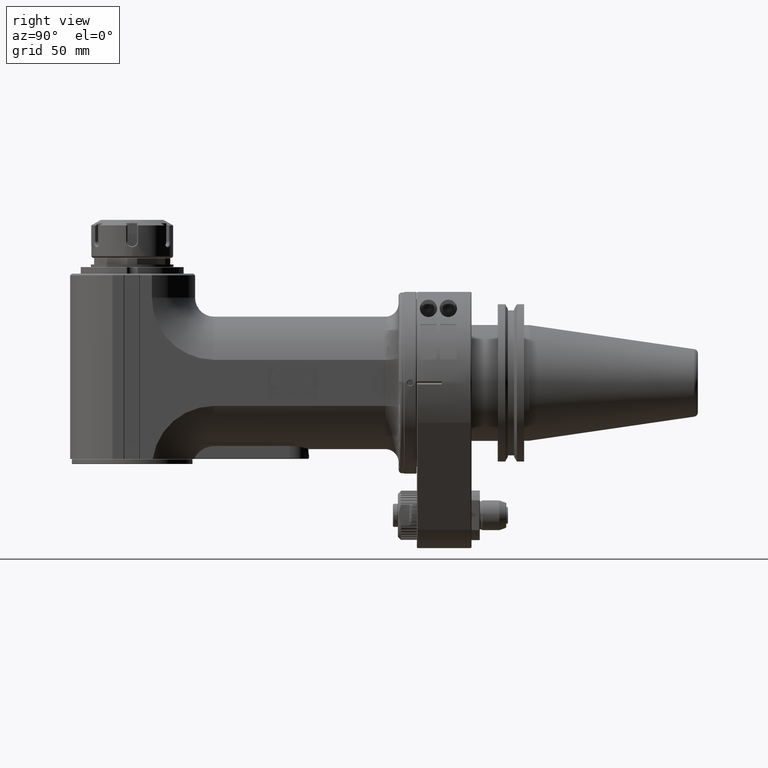
[diagram: clean part render]
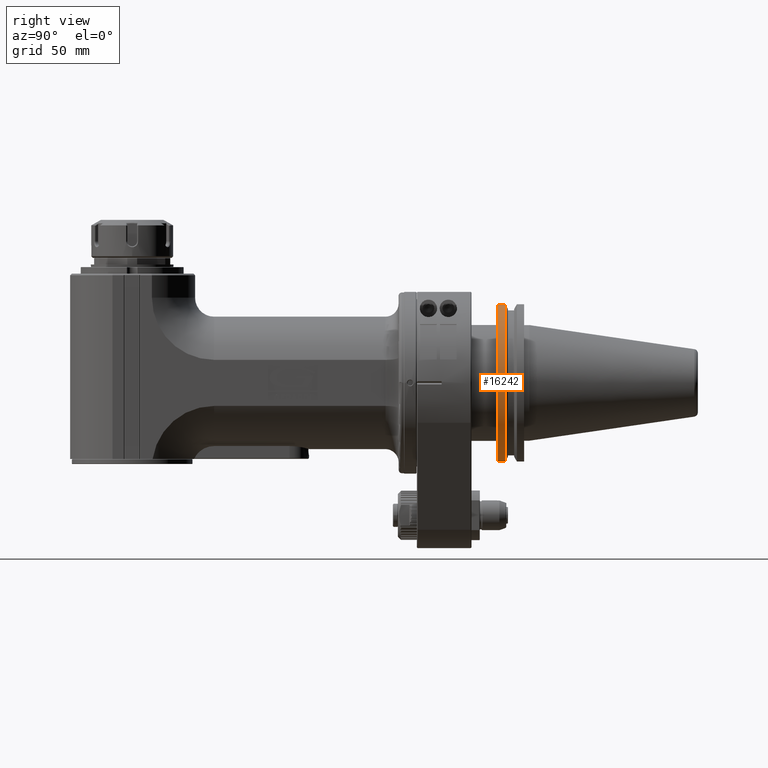
[diagram: same view with one face highlighted and labeled with its STEP entity id]
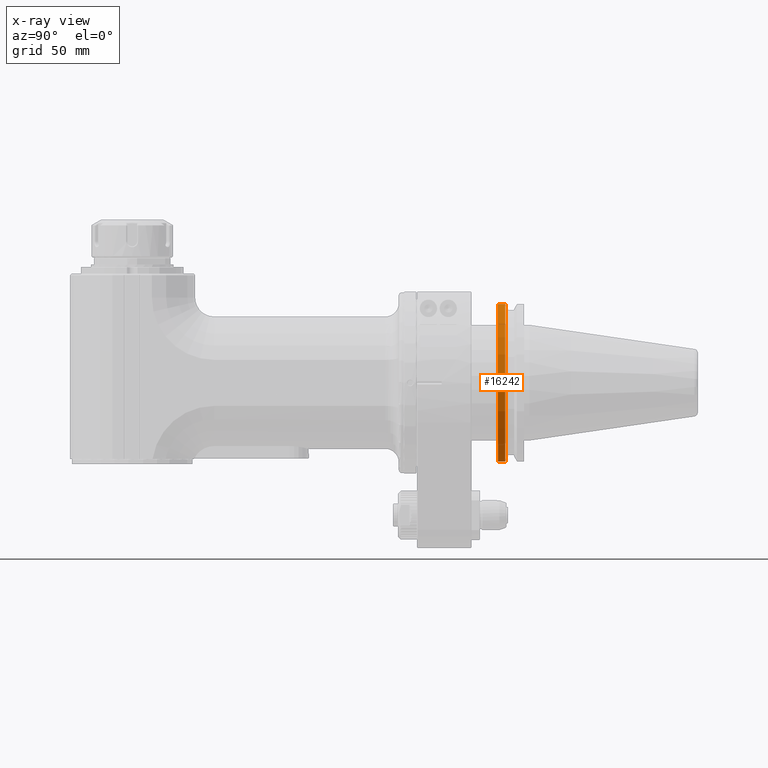
[diagram: x-ray of the same camera — body ghosted, the highlighted face saturated]
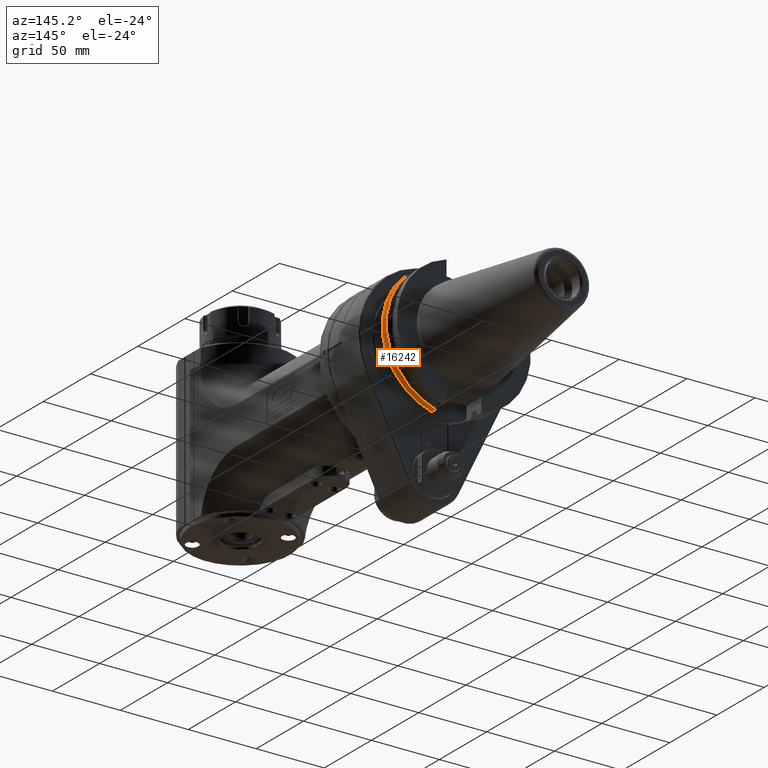
[diagram: same view with one face highlighted and labeled with its STEP entity id]
A machine part, right view. The second image highlights one B-rep face of the part: STEP entity #16242.
The next image is the same camera in x-ray: the body ghosted, the highlighted face saturated — about 0% of this face is hidden behind the body in this view.
A second angle (auxiliary view) of the same face is appended — the face is thin or edge-on in the first view.
In plain terms, the highlighted cylindrical surface (partial cylindrical patch) has radius 49.21 mm, axis along (0, -1, 0).
Its self-contained STEP definition (entity closure, byte-faithful):
#1143=CIRCLE('',#17579,49.21);
#1157=CIRCLE('',#17609,49.21);
#1640=CYLINDRICAL_SURFACE('',#17610,49.21);
#2156=FACE_OUTER_BOUND('',#3127,.T.);
#3127=EDGE_LOOP('',(#12712,#12713,#12714,#12715));
#4370=LINE('',#26351,#5692);
#4382=LINE('',#26401,#5704);
#5692=VECTOR('',#20683,4.486823611981);
#5704=VECTOR('',#20735,4.486823611981);
#7084=VERTEX_POINT('',#26346);
#7085=VERTEX_POINT('',#26350);
#7086=VERTEX_POINT('',#26354);
#7097=VERTEX_POINT('',#26400);
#9074=EDGE_CURVE('',#7084,#7085,#4370,.T.);
#9076=EDGE_CURVE('',#7086,#7085,#1143,.T.);
#9097=EDGE_CURVE('',#7086,#7097,#4382,.T.);
#9109=EDGE_CURVE('',#7084,#7097,#1157,.T.);
#12712=ORIENTED_EDGE('',*,*,#9074,.F.);
#12713=ORIENTED_EDGE('',*,*,#9109,.T.);
#12714=ORIENTED_EDGE('',*,*,#9097,.F.);
#12715=ORIENTED_EDGE('',*,*,#9076,.T.);
#16242=ADVANCED_FACE('',(#2156),#1640,.T.);
#17579=AXIS2_PLACEMENT_3D('',#26355,#20687,#20688);
#17609=AXIS2_PLACEMENT_3D('',#26428,#20762,#20763);
#17610=AXIS2_PLACEMENT_3D('',#26429,#20764,#20765);
#20683=DIRECTION('',(-3.286013233872E-14,-1.,5.067586673924E-14));
#20687=DIRECTION('center_axis',(0.,1.,0.));
#20688=DIRECTION('ref_axis',(0.261125787441599,0.,0.965304782508097));
#20735=DIRECTION('',(3.325603754762E-14,1.,4.750862506803E-14));
#20762=DIRECTION('center_axis',(0.,-1.,0.));
#20763=DIRECTION('ref_axis',(0.261125787441599,0.,-0.965304782508097));
#20764=DIRECTION('center_axis',(0.,-1.,0.));
#20765=DIRECTION('ref_axis',(0.,0.,1.));
#26346=CARTESIAN_POINT('',(12.85,53.386823611981,-47.50264834722));
#26350=CARTESIAN_POINT('',(12.85,48.9000000000001,-47.50264834722));
#26351=CARTESIAN_POINT('',(12.85,53.386823611981,-47.50264834722));
#26354=CARTESIAN_POINT('',(12.85,48.9000000000001,47.50264834722));
#26355=CARTESIAN_POINT('Origin',(0.,48.9000000000003,-1.480248809205E-14));
#26400=CARTESIAN_POINT('',(12.85,53.386823611981,47.50264834722));
#26401=CARTESIAN_POINT('',(12.85,48.9000000000001,47.50264834722));
#26428=CARTESIAN_POINT('Origin',(0.,53.386823611982,-1.480248809205E-14));
#26429=CARTESIAN_POINT('Origin',(0.,175.845,-1.480248809205E-14));